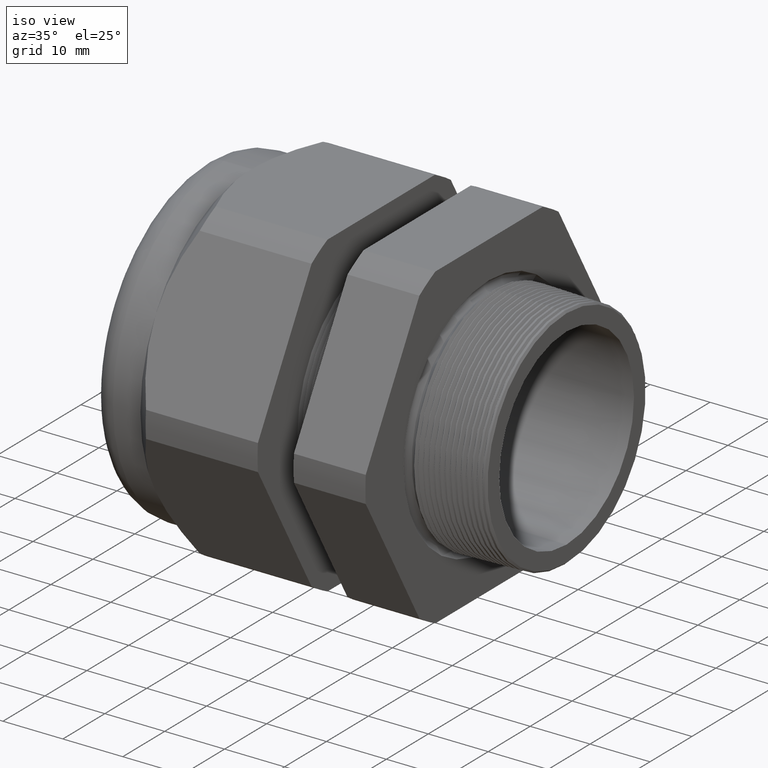
[diagram: clean part render]
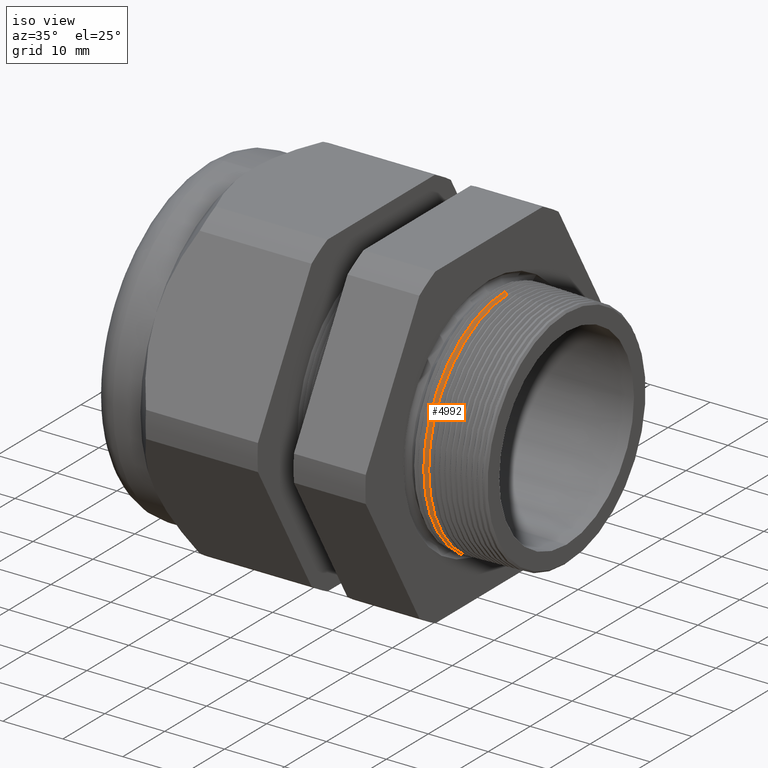
[diagram: same view with one face highlighted and labeled with its STEP entity id]
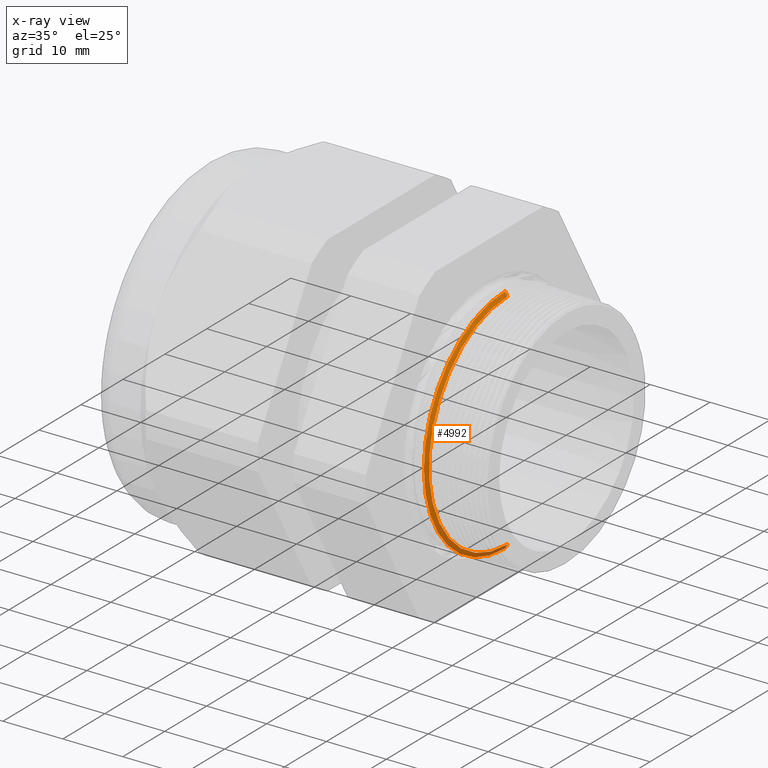
[diagram: x-ray of the same camera — body ghosted, the highlighted face saturated]
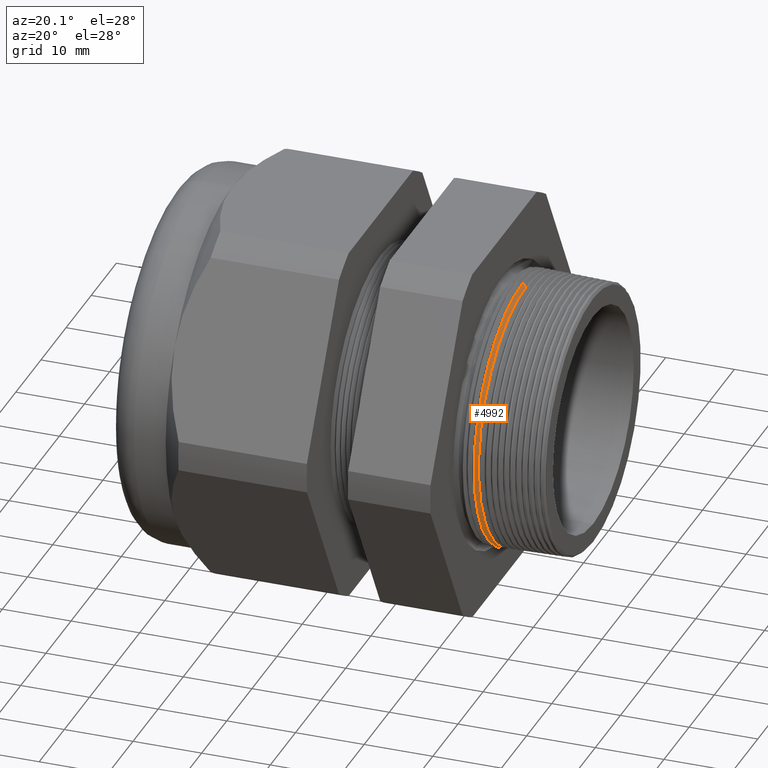
[diagram: same view with one face highlighted and labeled with its STEP entity id]
A machine part, iso view. The second image highlights one B-rep face of the part: STEP entity #4992.
The next image is the same camera in x-ray: the body ghosted, the highlighted face saturated — about 4% of this face is hidden behind the body in this view.
A second angle (auxiliary view) of the same face is appended — the face is thin or edge-on in the first view.
In plain terms, the highlighted conical surface has half-angle 61.5 deg.
Its self-contained STEP definition (entity closure, byte-faithful):
#890 = DIRECTION ( 'NONE',  ( -0.4771587602596179000, 0.0000000000000000000, 0.8788171126619600500 ) ) ;
#891 = VECTOR ( 'NONE', #890, 39.37007874015748900 ) ;
#892 = CARTESIAN_POINT ( 'NONE',  ( -0.2049999999999999600, 0.0000000000000000000, 0.7664393454711850900 ) ) ;
#893 = LINE ( 'NONE', #892, #891 ) ;
#894 = CARTESIAN_POINT ( 'NONE',  ( -0.2034856000580644300, 0.0000000000000000000, 0.7636501677483175100 ) ) ;
#908 = CARTESIAN_POINT ( 'NONE',  ( -0.1884707356790752100, 9.182685790054578000E-017, -0.7359962276773550600 ) ) ;
#944 = CARTESIAN_POINT ( 'NONE',  ( -0.1884707356790752100, 0.0000000000000000000, 0.7359962276773550600 ) ) ;
#1008 = CARTESIAN_POINT ( 'NONE',  ( -0.2034856000580644300, 9.352496886341754700E-017, -0.7636501677483175100 ) ) ;
#1009 = DIRECTION ( 'NONE',  ( -0.4771587602596179000, 1.076240564057388100E-016, -0.8788171126619600500 ) ) ;
#1010 = VECTOR ( 'NONE', #1009, 39.37007874015748900 ) ;
#1011 = CARTESIAN_POINT ( 'NONE',  ( -0.2049999999999999600, 9.386174911718792200E-017, -0.7664393454711850900 ) ) ;
#1012 = LINE ( 'NONE', #1011, #1010 ) ;
#1679 = DIRECTION ( 'NONE',  ( 0.0000000000000000000, 0.0000000000000000000, 1.000000000000000000 ) ) ;
#1680 = DIRECTION ( 'NONE',  ( 1.000000000000000000, 0.0000000000000000000, 0.0000000000000000000 ) ) ;
#1681 = CARTESIAN_POINT ( 'NONE',  ( -0.2034856000580644300, 0.0000000000000000000, 0.0000000000000000000 ) ) ;
#1682 = AXIS2_PLACEMENT_3D ( 'NONE', #1681, #1680, #1679 ) ;
#1687 = CIRCLE ( 'NONE', #1682, 0.7636501677483175100 ) ;
#3017 = DIRECTION ( 'NONE',  ( 0.0000000000000000000, 0.0000000000000000000, -1.000000000000000000 ) ) ;
#3018 = DIRECTION ( 'NONE',  ( 1.000000000000000000, 0.0000000000000000000, 0.0000000000000000000 ) ) ;
#3019 = AXIS2_PLACEMENT_3D ( 'NONE', #3025, #3018, #3017 ) ;
#3020 = CIRCLE ( 'NONE', #3019, 0.7359962276773550600 ) ;
#3021 = DIRECTION ( 'NONE',  ( 0.0000000000000000000, 0.0000000000000000000, 1.000000000000000000 ) ) ;
#3022 = DIRECTION ( 'NONE',  ( -1.000000000000000000, 0.0000000000000000000, 0.0000000000000000000 ) ) ;
#3023 = CARTESIAN_POINT ( 'NONE',  ( -0.2049999999999999600, 0.0000000000000000000, 0.0000000000000000000 ) ) ;
#3024 = AXIS2_PLACEMENT_3D ( 'NONE', #3023, #3022, #3021 ) ;
#3025 = CARTESIAN_POINT ( 'NONE',  ( -0.1884707356790752100, 0.0000000000000000000, 0.0000000000000000000 ) ) ;
#3026 = CONICAL_SURFACE ( 'NONE', #3024, 0.7664393454711850900, 1.073377489976501800 ) ;
#3031 = FACE_OUTER_BOUND ( 'NONE', #4993, .T. ) ;
#3748 = VERTEX_POINT ( 'NONE', #894 ) ;
#3750 = EDGE_CURVE ( 'NONE', #3790, #3748, #893, .T. ) ;
#3775 = VERTEX_POINT ( 'NONE', #908 ) ;
#3790 = VERTEX_POINT ( 'NONE', #944 ) ;
#3816 = EDGE_CURVE ( 'NONE', #3775, #3817, #1012, .T. ) ;
#3817 = VERTEX_POINT ( 'NONE', #1008 ) ;
#4160 = EDGE_CURVE ( 'NONE', #3748, #3817, #1687, .T. ) ;
#4992 = ADVANCED_FACE ( 'NONE', ( #3031 ), #3026, .T. ) ;
#4993 = EDGE_LOOP ( 'NONE', ( #4994, #4995, #4997, #4998 ) ) ;
#4994 = ORIENTED_EDGE ( 'NONE', *, *, #3816, .F. ) ;
#4995 = ORIENTED_EDGE ( 'NONE', *, *, #4996, .F. ) ;
#4996 = EDGE_CURVE ( 'NONE', #3790, #3775, #3020, .T. ) ;
#4997 = ORIENTED_EDGE ( 'NONE', *, *, #3750, .T. ) ;
#4998 = ORIENTED_EDGE ( 'NONE', *, *, #4160, .T. ) ;